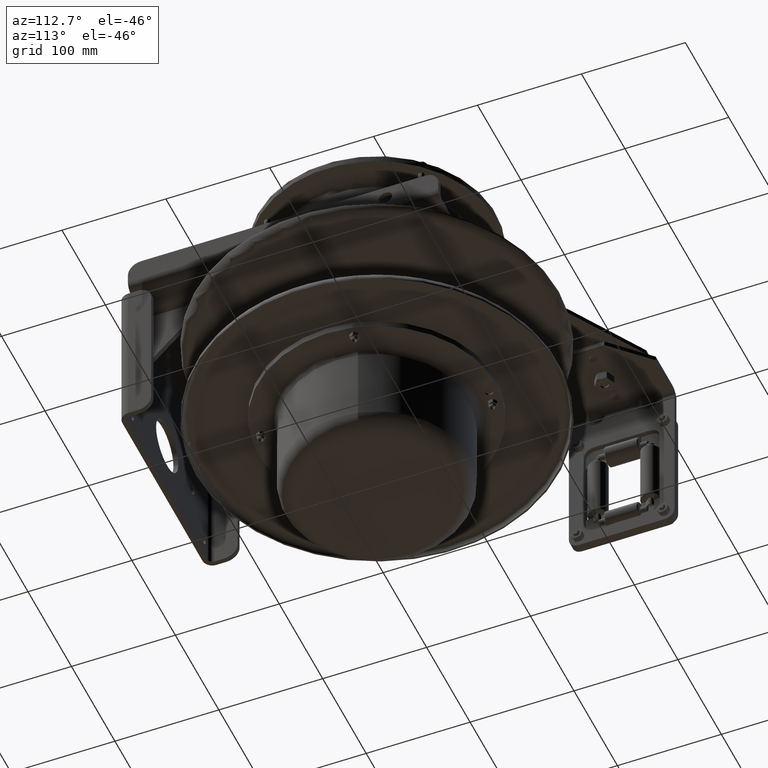
[diagram: clean part render]
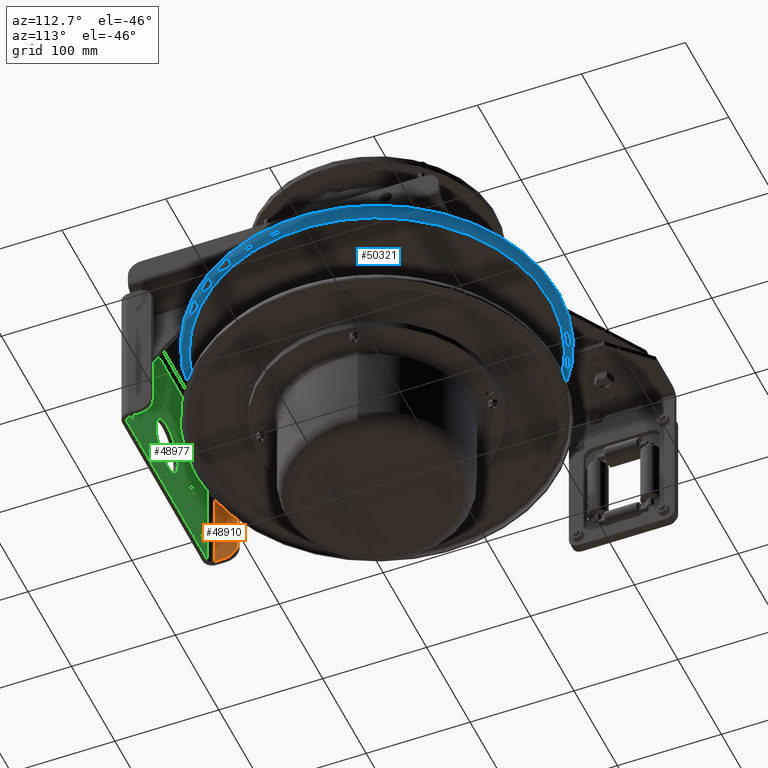
[diagram: same view with three faces highlighted in distinct colors, each labeled with its STEP entity id]
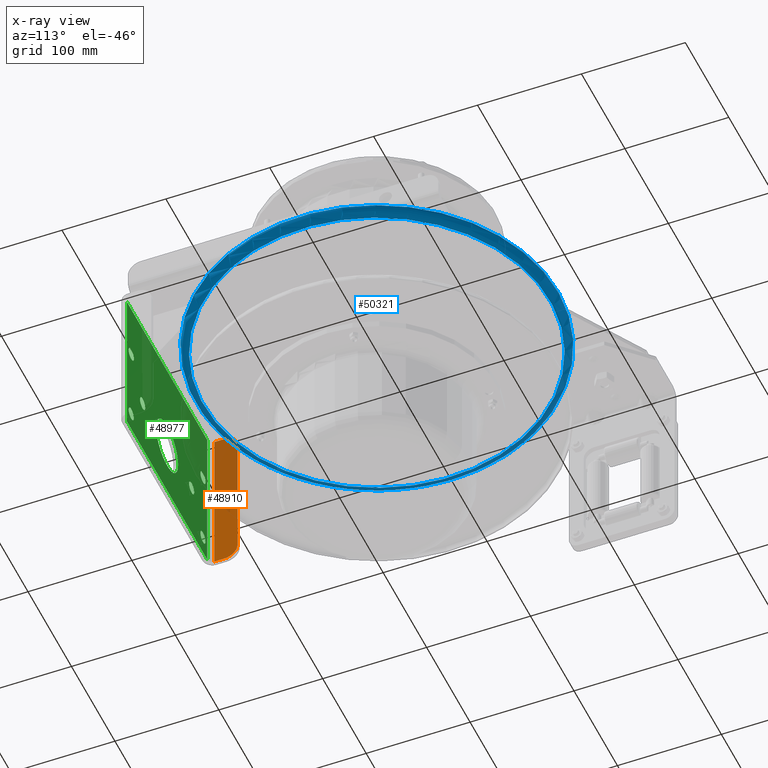
[diagram: x-ray of the same camera — body ghosted, the three highlighted faces saturated]
A machine part, auxiliary view with three faces highlighted in distinct colors.
The next image is the same camera in x-ray (body ghosted, the three faces saturated) — at least one of them is partly hidden behind the body in this view.
Their STEP definitions:

[orange] entity #48910 — the highlighted planar face has unit normal (1, 0, -0).
#3679=PLANE('',#52246);
#4935=FACE_OUTER_BOUND('',#8108,.T.);
#8108=EDGE_LOOP('',(#31401,#31402,#31403,#31404,#31405,#31406));
#12582=LINE('',#72897,#14966);
#12585=LINE('',#72903,#14969);
#12586=LINE('',#72905,#14970);
#12587=LINE('',#72907,#14971);
#14966=VECTOR('',#58348,5.008);
#14969=VECTOR('',#58353,0.383);
#14970=VECTOR('',#58354,6.008);
#14971=VECTOR('',#58355,0.383000000000001);
#17344=CIRCLE('',#52244,0.5);
#17345=CIRCLE('',#52247,0.5);
#20265=VERTEX_POINT('',#72890);
#20266=VERTEX_POINT('',#72892);
#20267=VERTEX_POINT('',#72896);
#20269=VERTEX_POINT('',#72902);
#20270=VERTEX_POINT('',#72904);
#20271=VERTEX_POINT('',#72906);
#24774=EDGE_CURVE('',#20265,#20266,#17344,.T.);
#24776=EDGE_CURVE('',#20267,#20266,#12582,.T.);
#24779=EDGE_CURVE('',#20265,#20269,#12585,.T.);
#24780=EDGE_CURVE('',#20269,#20270,#12586,.T.);
#24781=EDGE_CURVE('',#20271,#20270,#12587,.T.);
#24782=EDGE_CURVE('',#20267,#20271,#17345,.T.);
#31401=ORIENTED_EDGE('',*,*,#24774,.F.);
#31402=ORIENTED_EDGE('',*,*,#24779,.T.);
#31403=ORIENTED_EDGE('',*,*,#24780,.T.);
#31404=ORIENTED_EDGE('',*,*,#24781,.F.);
#31405=ORIENTED_EDGE('',*,*,#24782,.F.);
#31406=ORIENTED_EDGE('',*,*,#24776,.T.);
#48910=ADVANCED_FACE('',(#4935),#3679,.T.);
#52244=AXIS2_PLACEMENT_3D('',#72893,#58343,#58344);
#52246=AXIS2_PLACEMENT_3D('',#72901,#58351,#58352);
#52247=AXIS2_PLACEMENT_3D('',#72908,#58356,#58357);
#58343=DIRECTION('center_axis',(-1.,-1.68856684557197E-13,2.93420058589523E-17));
#58344=DIRECTION('ref_axis',(-1.19377044598108E-13,0.707106781186566,0.707106781186529));
#58348=DIRECTION('',(2.93420058544902E-17,2.64254077239698E-14,1.));
#58351=DIRECTION('center_axis',(1.,1.68856684557197E-13,-2.93420058589523E-17));
#58352=DIRECTION('ref_axis',(0.,-2.70716782324599E-14,-1.));
#58353=DIRECTION('',(1.68809410894267E-13,-1.,2.64522125157716E-14));
#58354=DIRECTION('',(-2.93420058544486E-17,-2.66716174056158E-14,-1.));
#58355=DIRECTION('',(1.68809410894267E-13,-1.,2.64522125157716E-14));
#58356=DIRECTION('center_axis',(-1.,-1.68856684557197E-13,2.93420058589523E-17));
#58357=DIRECTION('ref_axis',(-1.19417328408504E-13,0.707106781186529,-0.707106781186566));
#72890=CARTESIAN_POINT('',(-4.61751141315879,-14.1749691788949,-8.80225804599725));
#72892=CARTESIAN_POINT('',(-4.61751141315887,-13.6749691788949,-9.30225804599726));
#72893=CARTESIAN_POINT('Origin',(-4.61751141315879,-14.1749691788949,-9.30225804599725));
#72896=CARTESIAN_POINT('',(-4.61751141315887,-13.674969178895,-14.3102580459973));
#72897=CARTESIAN_POINT('',(-4.61751141315887,-13.674969178895,-14.8102580459973));
#72901=CARTESIAN_POINT('Origin',(-4.61751141315876,-14.3217644048254,-11.8062580459972));
#72902=CARTESIAN_POINT('',(-4.61751141315872,-14.5579691788949,-8.80225804599723));
#72903=CARTESIAN_POINT('',(-4.61751141315859,-15.3791500826167,-8.80225804599721));
#72904=CARTESIAN_POINT('',(-4.61751141315872,-14.557969178895,-14.8102580459972));
#72905=CARTESIAN_POINT('',(-4.61751141315872,-14.5579691788949,-11.8062580459972));
#72906=CARTESIAN_POINT('',(-4.61751141315879,-14.174969178895,-14.8102580459972));
#72907=CARTESIAN_POINT('',(-4.61751141315859,-15.3791500826169,-14.8102580459972));
#72908=CARTESIAN_POINT('Origin',(-4.61751141315879,-14.174969178895,-14.3102580459972));

[blue] entity #50321 — the highlighted toroidal blend (fillet) surface has major radius 166.776 mm and minor (blend) radius 7.8486 mm.
#1339=TOROIDAL_SURFACE('',#54900,6.566,0.309);
#2959=FACE_BOUND('',#10099,.T.);
#6346=FACE_OUTER_BOUND('',#10098,.T.);
#10098=EDGE_LOOP('',(#37119));
#10099=EDGE_LOOP('',(#37120));
#18590=CIRCLE('',#54899,6.875);
#18591=CIRCLE('',#54901,6.566);
#22178=VERTEX_POINT('',#88148);
#22179=VERTEX_POINT('',#88151);
#27648=EDGE_CURVE('',#22178,#22178,#18590,.T.);
#27649=EDGE_CURVE('',#22179,#22179,#18591,.T.);
#37119=ORIENTED_EDGE('',*,*,#27649,.F.);
#37120=ORIENTED_EDGE('',*,*,#27648,.T.);
#50321=ADVANCED_FACE('',(#6346,#2959),#1339,.T.);
#54899=AXIS2_PLACEMENT_3D('',#88149,#64626,#64627);
#54900=AXIS2_PLACEMENT_3D('',#88150,#64628,#64629);
#54901=AXIS2_PLACEMENT_3D('',#88152,#64630,#64631);
#64626=DIRECTION('center_axis',(-1.97131159231164E-15,-2.39320459040778E-14,
-1.));
#64627=DIRECTION('ref_axis',(0.745731262313298,0.666246864464378,-1.74147192259568E-14));
#64628=DIRECTION('center_axis',(-1.97131159231164E-15,-2.39320459040778E-14,
-1.));
#64629=DIRECTION('ref_axis',(-0.666246864464378,0.745731262313298,-1.65362673049623E-14));
#64630=DIRECTION('center_axis',(-1.97131159231164E-15,-2.39320459040778E-14,
-1.));
#64631=DIRECTION('ref_axis',(0.745731262313298,0.666246864464378,-1.74147192259568E-14));
#88148=CARTESIAN_POINT('',(4.33039101524362,-2.2195219857024,-10.7464580459975));
#88149=CARTESIAN_POINT('Origin',(-0.796511413160305,-6.799969178895,-10.7464580459974));
#88150=CARTESIAN_POINT('Origin',(-0.796511413160305,-6.799969178895,-10.7464580459974));
#88151=CARTESIAN_POINT('',(4.09996005518881,-2.4253922668219,-11.0554580459975));
#88152=CARTESIAN_POINT('Origin',(-0.796511413160306,-6.799969178895,-11.0554580459974));

[green] entity #48977 — the highlighted planar face has unit normal (-0, 1, -0).
#2422=FACE_BOUND('',#8218,.T.);
#2423=FACE_BOUND('',#8219,.T.);
#2424=FACE_BOUND('',#8220,.T.);
#2425=FACE_BOUND('',#8221,.T.);
#2426=FACE_BOUND('',#8222,.T.);
#2427=FACE_BOUND('',#8223,.T.);
#2428=FACE_BOUND('',#8224,.T.);
#3711=PLANE('',#52384);
#5002=FACE_OUTER_BOUND('',#8217,.T.);
#8217=EDGE_LOOP('',(#31677,#31678,#31679,#31680));
#8218=EDGE_LOOP('',(#31681));
#8219=EDGE_LOOP('',(#31682));
#8220=EDGE_LOOP('',(#31683));
#8221=EDGE_LOOP('',(#31684));
#8222=EDGE_LOOP('',(#31685));
#8223=EDGE_LOOP('',(#31686));
#8224=EDGE_LOOP('',(#31687));
#12644=LINE('',#73166,#15028);
#12651=LINE('',#73188,#15035);
#12657=LINE('',#73205,#15041);
#12658=LINE('',#73206,#15042);
#15028=VECTOR('',#58646,6.008);
#15035=VECTOR('',#58673,6.008);
#15041=VECTOR('',#58701,7.266);
#15042=VECTOR('',#58702,7.266);
#17373=CIRCLE('',#52291,0.235);
#17375=CIRCLE('',#52294,0.235);
#17377=CIRCLE('',#52297,0.235);
#17379=CIRCLE('',#52300,0.235);
#17381=CIRCLE('',#52303,0.235);
#17383=CIRCLE('',#52306,0.235);
#17385=CIRCLE('',#52309,1.);
#20303=VERTEX_POINT('',#72991);
#20305=VERTEX_POINT('',#72996);
#20307=VERTEX_POINT('',#73001);
#20309=VERTEX_POINT('',#73006);
#20311=VERTEX_POINT('',#73011);
#20313=VERTEX_POINT('',#73016);
#20315=VERTEX_POINT('',#73021);
#20355=VERTEX_POINT('',#73155);
#20356=VERTEX_POINT('',#73159);
#20360=VERTEX_POINT('',#73179);
#20361=VERTEX_POINT('',#73183);
#24818=EDGE_CURVE('',#20303,#20303,#17373,.T.);
#24820=EDGE_CURVE('',#20305,#20305,#17375,.T.);
#24822=EDGE_CURVE('',#20307,#20307,#17377,.T.);
#24824=EDGE_CURVE('',#20309,#20309,#17379,.T.);
#24826=EDGE_CURVE('',#20311,#20311,#17381,.T.);
#24828=EDGE_CURVE('',#20313,#20313,#17383,.T.);
#24830=EDGE_CURVE('',#20315,#20315,#17385,.T.);
#24901=EDGE_CURVE('',#20355,#20356,#12644,.T.);
#24912=EDGE_CURVE('',#20360,#20361,#12651,.T.);
#24922=EDGE_CURVE('',#20360,#20356,#12657,.T.);
#24923=EDGE_CURVE('',#20361,#20355,#12658,.T.);
#31677=ORIENTED_EDGE('',*,*,#24901,.T.);
#31678=ORIENTED_EDGE('',*,*,#24922,.F.);
#31679=ORIENTED_EDGE('',*,*,#24912,.T.);
#31680=ORIENTED_EDGE('',*,*,#24923,.T.);
#31681=ORIENTED_EDGE('',*,*,#24818,.T.);
#31682=ORIENTED_EDGE('',*,*,#24820,.T.);
#31683=ORIENTED_EDGE('',*,*,#24822,.T.);
#31684=ORIENTED_EDGE('',*,*,#24824,.T.);
#31685=ORIENTED_EDGE('',*,*,#24826,.T.);
#31686=ORIENTED_EDGE('',*,*,#24828,.T.);
#31687=ORIENTED_EDGE('',*,*,#24830,.T.);
#48977=ADVANCED_FACE('',(#5002,#2422,#2423,#2424,#2425,#2426,#2427,#2428),
#3711,.T.);
#52291=AXIS2_PLACEMENT_3D('',#72992,#58452,#58453);
#52294=AXIS2_PLACEMENT_3D('',#72997,#58458,#58459);
#52297=AXIS2_PLACEMENT_3D('',#73002,#58464,#58465);
#52300=AXIS2_PLACEMENT_3D('',#73007,#58470,#58471);
#52303=AXIS2_PLACEMENT_3D('',#73012,#58476,#58477);
#52306=AXIS2_PLACEMENT_3D('',#73017,#58482,#58483);
#52309=AXIS2_PLACEMENT_3D('',#73022,#58488,#58489);
#52384=AXIS2_PLACEMENT_3D('',#73204,#58699,#58700);
#58452=DIRECTION('center_axis',(1.68809410894267E-13,-1.,2.66716174056157E-14));
#58453=DIRECTION('ref_axis',(-1.,-1.68809410894267E-13,-1.90062883985144E-16));
#58458=DIRECTION('center_axis',(1.68809410894267E-13,-1.,2.66716174056157E-14));
#58459=DIRECTION('ref_axis',(-1.,-1.68809410894267E-13,-1.90062883985144E-16));
#58464=DIRECTION('center_axis',(1.68809410894267E-13,-1.,2.66716174056157E-14));
#58465=DIRECTION('ref_axis',(-1.,-1.68809410894267E-13,-1.90062883985144E-16));
#58470=DIRECTION('center_axis',(1.68809410894267E-13,-1.,2.66716174056157E-14));
#58471=DIRECTION('ref_axis',(-1.,-1.68809410894267E-13,-1.90062883985144E-16));
#58476=DIRECTION('center_axis',(1.68809410894267E-13,-1.,2.66716174056157E-14));
#58477=DIRECTION('ref_axis',(-1.,-1.68809410894267E-13,-1.90062883985144E-16));
#58482=DIRECTION('center_axis',(1.68809410894267E-13,-1.,2.66716174056157E-14));
#58483=DIRECTION('ref_axis',(-1.,-1.68809410894267E-13,-1.90062883985144E-16));
#58488=DIRECTION('center_axis',(1.68809410894267E-13,-1.,2.66716174056157E-14));
#58489=DIRECTION('ref_axis',(-1.,-1.68809410894267E-13,-1.90062883985144E-16));
#58646=DIRECTION('',(1.90062883989646E-16,-2.66716174056157E-14,-1.));
#58673=DIRECTION('',(2.81939463963139E-17,2.66716174056158E-14,1.));
#58699=DIRECTION('center_axis',(-1.68809410894267E-13,1.,-2.66716174056157E-14));
#58700=DIRECTION('ref_axis',(2.8199664825479E-16,-2.70716782324599E-14,
-1.));
#58701=DIRECTION('',(1.,1.68809410894267E-13,1.52246123906307E-17));
#58702=DIRECTION('',(1.,1.68809410894267E-13,1.90062883985144E-16));
#72991=CARTESIAN_POINT('',(2.21848858684131,-14.7459691788939,-14.0602580459972));
#72992=CARTESIAN_POINT('Origin',(2.45348858684131,-14.7459691788938,-14.0602580459972));
#72996=CARTESIAN_POINT('',(-4.28151141315869,-14.7459691788949,-11.0602580459972));
#72997=CARTESIAN_POINT('Origin',(-4.04651141315869,-14.7459691788948,-11.0602580459972));
#73001=CARTESIAN_POINT('',(1.18848858684131,-14.745969178894,-12.5602580459972));
#73002=CARTESIAN_POINT('Origin',(1.42348858684131,-14.7459691788939,-12.5602580459972));
#73006=CARTESIAN_POINT('',(-3.25151141315869,-14.7459691788947,-12.5602580459972));
#73007=CARTESIAN_POINT('Origin',(-3.01651141315869,-14.7459691788947,-12.5602580459972));
#73011=CARTESIAN_POINT('',(-4.28151141315869,-14.7459691788949,-14.0602580459972));
#73012=CARTESIAN_POINT('Origin',(-4.04651141315869,-14.7459691788949,-14.0602580459972));
#73016=CARTESIAN_POINT('',(2.21848858684131,-14.7459691788938,-11.0602580459972));
#73017=CARTESIAN_POINT('Origin',(2.45348858684131,-14.7459691788937,-11.0602580459972));
#73021=CARTESIAN_POINT('',(-1.79651141315869,-14.7459691788945,-12.5602580459972));
#73022=CARTESIAN_POINT('Origin',(-0.796511413158693,-14.7459691788943,-12.5602580459972));
#73155=CARTESIAN_POINT('',(2.8364885868413,-14.7459691788936,-8.80225804599723));
#73159=CARTESIAN_POINT('',(2.83648858684131,-14.7459691788938,-14.8102580459972));
#73166=CARTESIAN_POINT('',(2.83648858684131,-14.7459691788937,-13.2165080459972));
#73179=CARTESIAN_POINT('',(-4.42951141315869,-14.745969178895,-14.8102580459972));
#73183=CARTESIAN_POINT('',(-4.42951141315869,-14.7459691788948,-8.80225804599723));
#73188=CARTESIAN_POINT('',(-4.42951141315869,-14.7459691788949,-10.2125080459972));
#73204=CARTESIAN_POINT('Origin',(-0.796511413158693,-14.7459691788943,-11.6227580459972));
#73205=CARTESIAN_POINT('',(3.20348858684131,-14.7459691788937,-14.8102580459972));
#73206=CARTESIAN_POINT('',(1.20348858684131,-14.7459691788939,-8.80225804599723));